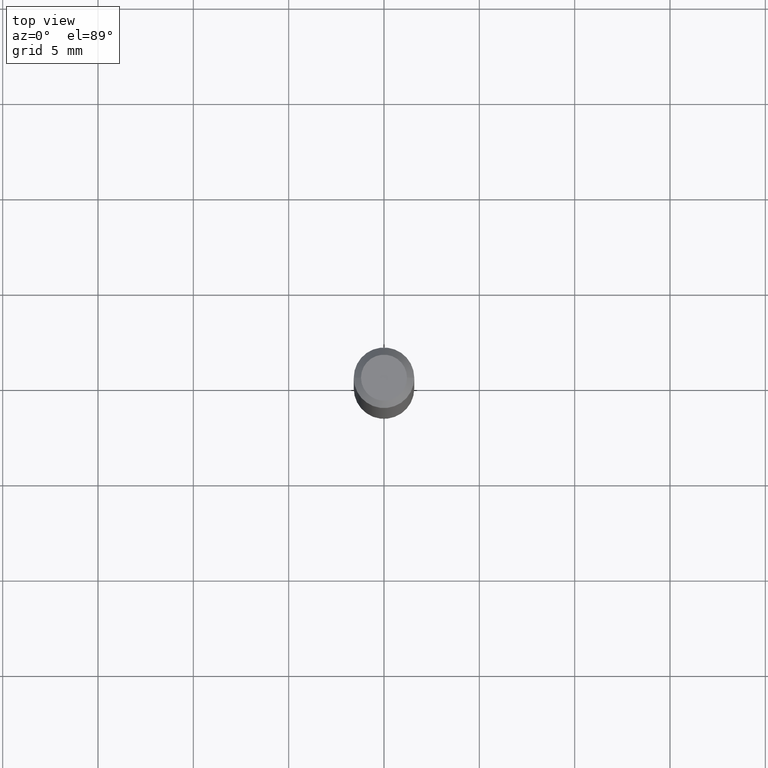
[diagram: clean part render]
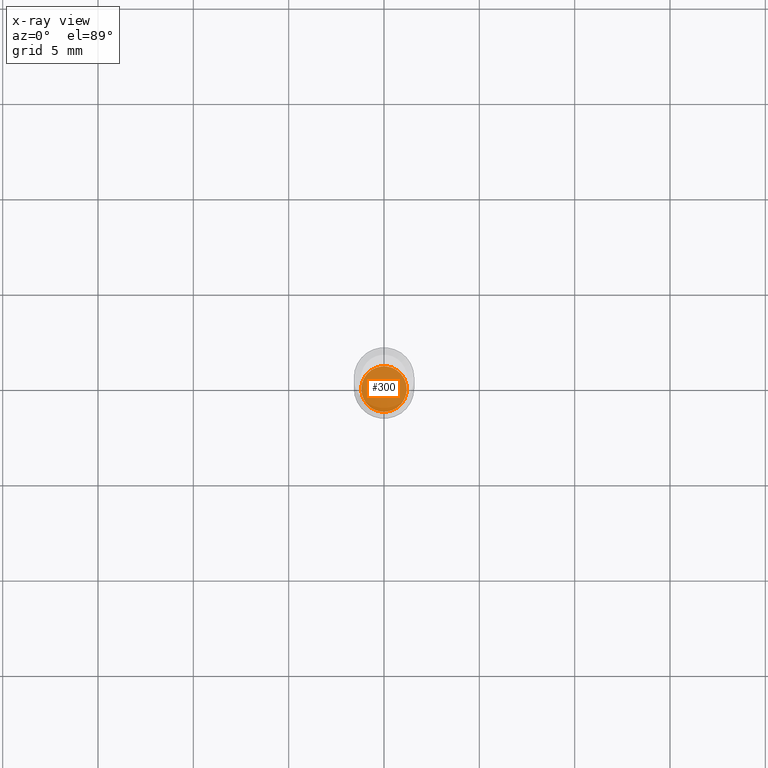
[diagram: x-ray — body ghosted, one internal face saturated and labeled with its STEP entity id]
A machine part, top view, then the same camera in x-ray: the body is ghosted and one INTERNAL B-rep face — a face not visible from any outside direction — is saturated and labeled: STEP entity #300.
In plain terms, the highlighted planar face has unit normal (-0, 0, 1).
Its self-contained STEP definition (entity closure, byte-faithful):
#2 = EDGE_CURVE ( 'NONE', #197, #331, #219, .T. ) ;
#15 = FACE_OUTER_BOUND ( 'NONE', #271, .T. ) ;
#18 = AXIS2_PLACEMENT_3D ( 'NONE', #430, #317, #131 ) ;
#46 = CARTESIAN_POINT ( 'NONE',  ( 0.04699999999999999317, -5.066139422661402938E-15, -1.356999999999999984 ) ) ;
#74 = AXIS2_PLACEMENT_3D ( 'NONE', #261, #381, #154 ) ;
#91 = CARTESIAN_POINT ( 'NONE',  ( -0.04699999999999999317, -4.401335863828790638E-15, -1.356999999999999984 ) ) ;
#131 = DIRECTION ( 'NONE',  ( 1.000000000000000000, -6.982962677686272233E-15, 0.000000000000000000 ) ) ;
#137 = AXIS2_PLACEMENT_3D ( 'NONE', #153, #146, #305 ) ;
#146 = DIRECTION ( 'NONE',  ( -2.445468806185136597E-29, 3.491481338843145583E-15, 1.000000000000000000 ) ) ;
#147 = PLANE ( 'NONE',  #74 ) ;
#153 = CARTESIAN_POINT ( 'NONE',  ( 3.318501169993230375E-29, -4.737940176810148435E-15, -1.356999999999999984 ) ) ;
#154 = DIRECTION ( 'NONE',  ( 1.000000000000000000, -6.982962677686265922E-15, 4.876176775795935793E-29 ) ) ;
#159 = ORIENTED_EDGE ( 'NONE', *, *, #212, .F. ) ;
#197 = VERTEX_POINT ( 'NONE', #91 ) ;
#212 = EDGE_CURVE ( 'NONE', #331, #197, #348, .T. ) ;
#219 = CIRCLE ( 'NONE', #18, 0.04699999999999999317 ) ;
#261 = CARTESIAN_POINT ( 'NONE',  ( 3.318501169993230375E-29, -4.737940176810148435E-15, -1.356999999999999984 ) ) ;
#271 = EDGE_LOOP ( 'NONE', ( #159, #391 ) ) ;
#300 = ADVANCED_FACE ( 'NONE', ( #15 ), #147, .F. ) ;
#305 = DIRECTION ( 'NONE',  ( 1.000000000000000000, -6.982962677686272233E-15, 0.000000000000000000 ) ) ;
#317 = DIRECTION ( 'NONE',  ( -2.445468806185136597E-29, 3.491481338843145583E-15, 1.000000000000000000 ) ) ;
#331 = VERTEX_POINT ( 'NONE', #46 ) ;
#348 = CIRCLE ( 'NONE', #137, 0.04699999999999999317 ) ;
#381 = DIRECTION ( 'NONE',  ( -2.438088387897960049E-29, 3.491481338843145188E-15, 1.000000000000000000 ) ) ;
#391 = ORIENTED_EDGE ( 'NONE', *, *, #2, .F. ) ;
#430 = CARTESIAN_POINT ( 'NONE',  ( 3.318501169993230375E-29, -4.737940176810148435E-15, -1.356999999999999984 ) ) ;